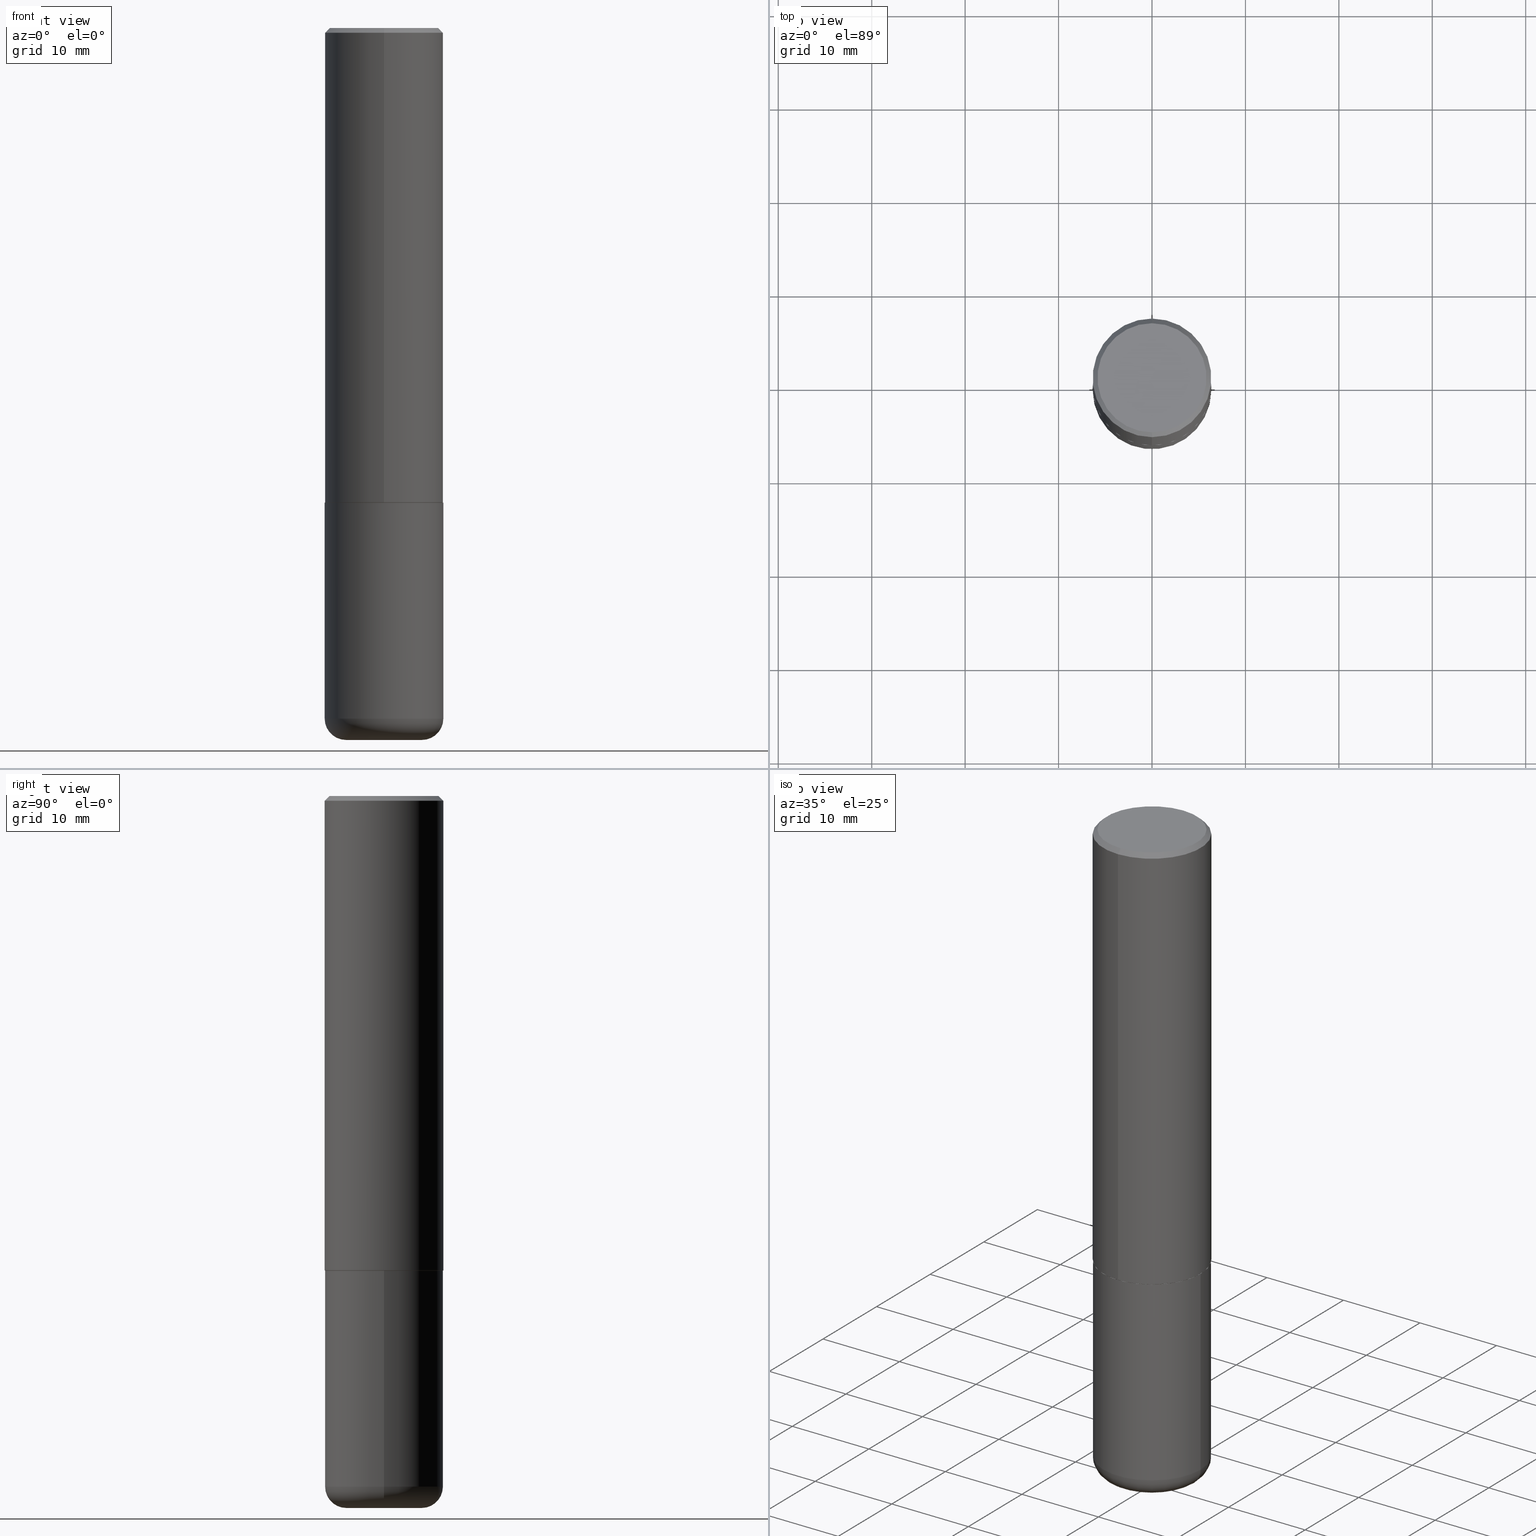
[diagram: canonical four-view strip — front | top / right | iso, engineering-drawing reading convention]
A machine part, canonical four-view strip (front | top / right | iso — engineering-drawing reading convention). The complete STEP part file that produces these views, byte-faithful:
ISO-10303-21;
HEADER;
FILE_DESCRIPTION (( 'STEP AP203' ),
    '1' );
FILE_NAME ('36812.STEP',
    '2024-03-01T17:56:15',
    ( '' ),
    ( '' ),
    'SwSTEP 2.0',
    'SolidWorks 2023',
    '' );
FILE_SCHEMA (( 'CONFIG_CONTROL_DESIGN' ));
ENDSEC;

DATA;
#1 = EDGE_CURVE ( 'NONE', #45, #97, #299, .T. ) ;
#2 = EDGE_LOOP ( 'NONE', ( #206, #264, #261, #297 ) ) ;
#3 = ORIENTED_EDGE ( 'NONE', *, *, #47, .F. ) ;
#4 = CARTESIAN_POINT ( 'NONE',  ( 4.890937612370273754E-29, -6.982962677686291954E-15, -2.000000000000000444 ) ) ;
#5 = APPROVAL ( #56, 'UNSPECIFIED' ) ;
#6 = AXIS2_PLACEMENT_3D ( 'NONE', #35, #95, #25 ) ;
#7 = ADVANCED_FACE ( 'NONE', ( #11 ), #367, .T. ) ;
#8 = ORIENTED_EDGE ( 'NONE', *, *, #282, .F. ) ;
#9 = ORIENTED_EDGE ( 'NONE', *, *, #362, .F. ) ;
#10 = ORIENTED_EDGE ( 'NONE', *, *, #202, .F. ) ;
#11 = FACE_OUTER_BOUND ( 'NONE', #133, .T. ) ;
#12 = APPROVAL_PERSON_ORGANIZATION ( #168, #415, #13 ) ;
#13 = APPROVAL_ROLE ( '' ) ;
#14 = CARTESIAN_POINT ( 'NONE',  ( -0.1600000000000000033, -9.023342318817394938E-15, -2.910000000000000586 ) ) ;
#15 = EDGE_CURVE ( 'NONE', #43, #235, #219, .T. ) ;
#16 = DIRECTION ( 'NONE',  ( 1.000000000000000000, -6.982962677686265133E-15, 4.883557194083112340E-29 ) ) ;
#17 = ADVANCED_FACE ( 'NONE', ( #241 ), #397, .F. ) ;
#18 =( NAMED_UNIT ( * ) PLANE_ANGLE_UNIT ( ) SI_UNIT ( $, .RADIAN. ) );
#19 = ORGANIZATION ( 'UNSPECIFIED', 'UNSPECIFIED', '' ) ;
#20 = FACE_OUTER_BOUND ( 'NONE', #413, .T. ) ;
#21 = CARTESIAN_POINT ( 'NONE',  ( 1.776356839400276103E-15, 0.2499999999999932276, -1.999000000000000998 ) ) ;
#22 = CARTESIAN_POINT ( 'NONE',  ( 7.116314225998749245E-29, -1.016021069603355467E-14, -2.910000000000000586 ) ) ;
#23 = COORDINATED_UNIVERSAL_TIME_OFFSET ( 5, 0, .BEHIND. ) ;
#24 = DIRECTION ( 'NONE',  ( -2.445468806185136597E-29, 3.491481338843145583E-15, 1.000000000000000000 ) ) ;
#25 = DIRECTION ( 'NONE',  ( -6.982962677686265922E-15, -1.000000000000000000, 3.490450240978375769E-15 ) ) ;
#26 = APPROVAL_DATE_TIME ( #346, #415 ) ;
#27 = CARTESIAN_POINT ( 'NONE',  ( 4.889931447133643413E-29, -6.977410031715773956E-15, -1.999000000000000110 ) ) ;
#28 = AXIS2_PLACEMENT_3D ( 'NONE', #142, #267, #361 ) ;
#29 = CIRCLE ( 'NONE', #416, 0.2500000000000000000 ) ;
#30 = CARTESIAN_POINT ( 'NONE',  ( 4.892377635951619858E-29, -6.980900481956752327E-15, -2.000000000000000444 ) ) ;
#31 = DIRECTION ( 'NONE',  ( -6.982962677686265133E-15, -1.000000000000000000, 3.278217592397113101E-15 ) ) ;
#32 = CARTESIAN_POINT ( 'NONE',  ( 7.116314225998749245E-29, -1.016021069603355467E-14, -2.910000000000000586 ) ) ;
#33 = EDGE_LOOP ( 'NONE', ( #418, #96, #255, #201 ) ) ;
#34 = ORIENTED_EDGE ( 'NONE', *, *, #362, .T. ) ;
#35 = CARTESIAN_POINT ( 'NONE',  ( 0.000000000000000000, 0.000000000000000000, 0.000000000000000000 ) ) ;
#36 = ADVANCED_FACE ( 'NONE', ( #210 ), #399, .T. ) ;
#37 = CONICAL_SURFACE ( 'NONE', #328, 0.2489999999999999991, 0.7853981633975165577 ) ;
#38 = CIRCLE ( 'NONE', #268, 0.1600000000000000033 ) ;
#39 = CARTESIAN_POINT ( 'NONE',  ( -0.2500000000000000000, -6.795229847459672846E-15, -2.000000000000000444 ) ) ;
#40 = ORIENTED_EDGE ( 'NONE', *, *, #15, .T. ) ;
#41 = DIRECTION ( 'NONE',  ( -2.445468806185136877E-29, 3.491481338843145188E-15, 1.000000000000000000 ) ) ;
#42 = AXIS2_PLACEMENT_3D ( 'NONE', #343, #24, #279 ) ;
#43 = VERTEX_POINT ( 'NONE', #296 ) ;
#44 = CARTESIAN_POINT ( 'NONE',  ( 4.892377635951642279E-31, -6.980900481956783980E-17, -0.02000000000000009409 ) ) ;
#45 = VERTEX_POINT ( 'NONE', #175 ) ;
#46 = DIRECTION ( 'NONE',  ( 2.438088387897960049E-29, -3.491481338843145188E-15, -1.000000000000000000 ) ) ;
#47 = EDGE_CURVE ( 'NONE', #72, #244, #54, .T. ) ;
#48 = CONICAL_SURFACE ( 'NONE', #280, 0.2489999999999999991, 0.7853981633975165577 ) ;
#49 = EDGE_LOOP ( 'NONE', ( #203, #258, #263, #237 ) ) ;
#50 = VECTOR ( 'NONE', #407, 39.37007874015748143 ) ;
#51 = ADVANCED_FACE ( 'NONE', ( #277 ), #37, .T. ) ;
#52 = CARTESIAN_POINT ( 'NONE',  ( -1.738757706743831162E-15, -0.2490000000000069658, -1.999999999999999334 ) ) ;
#53 = CONICAL_SURFACE ( 'NONE', #395, 0.2499999999999999722, 0.7853981633974460586 ) ;
#54 = LINE ( 'NONE', #83, #274 ) ;
#55 = LOCAL_TIME ( 12, 56, 15.00000000000000000, #120 ) ;
#56 = APPROVAL_STATUS ( 'not_yet_approved' ) ;
#57 = DIRECTION ( 'NONE',  ( -2.446188817975809368E-29, 3.490450240978375769E-15, 1.000000000000000000 ) ) ;
#58 = ADVANCED_BREP_SHAPE_REPRESENTATION ( '36812', ( #59, #335, #76 ), #283 ) ;
#59 = MANIFOLD_SOLID_BREP ( 'Body-Move/Copy2[1]', #171 ) ;
#60 = CARTESIAN_POINT ( 'NONE',  ( 4.892377635951642279E-31, -6.980900481956783980E-17, -0.02000000000000009409 ) ) ;
#61 = PLANE ( 'NONE',  #408 ) ;
#62 = DATE_AND_TIME ( #376, #137 ) ;
#63 = CARTESIAN_POINT ( 'NONE',  ( -1.745740669421566875E-15, -0.2500000000000000555, 8.726125602445941395E-16 ) ) ;
#64 = CIRCLE ( 'NONE', #82, 0.2489999999999999991 ) ;
#65 = DIRECTION ( 'NONE',  ( -2.445468806185136597E-29, 3.491481338843145583E-15, 1.000000000000000000 ) ) ;
#66 = DATE_AND_TIME ( #158, #71 ) ;
#67 = FACE_OUTER_BOUND ( 'NONE', #101, .T. ) ;
#68 = DIRECTION ( 'NONE',  ( 1.000000000000000000, -6.982962677686265133E-15, 4.883557194083112340E-29 ) ) ;
#69 = ADVANCED_FACE ( 'NONE', ( #251 ), #80, .T. ) ;
#70 = DIRECTION ( 'NONE',  ( -1.000000000000000000, 7.105427357601006592E-15, 0.000000000000000000 ) ) ;
#71 = LOCAL_TIME ( 12, 56, 15.00000000000000000, #228 ) ;
#72 = VERTEX_POINT ( 'NONE', #89 ) ;
#73 = LENGTH_MEASURE_WITH_UNIT ( LENGTH_MEASURE( 0.02539999999999999897 ), #213 );
#74 =( NAMED_UNIT ( * ) SI_UNIT ( $, .STERADIAN. ) SOLID_ANGLE_UNIT ( ) );
#75 = CIRCLE ( 'NONE', #312, 0.2299999999999997047 ) ;
#76 = AXIS2_PLACEMENT_3D ( 'NONE', #303, #338, #372 ) ;
#77 = CC_DESIGN_DATE_AND_TIME_ASSIGNMENT ( #62, #355, ( #111 ) ) ;
#78 = EDGE_CURVE ( 'NONE', #293, #295, #305, .T. ) ;
#79 = LINE ( 'NONE', #127, #50 ) ;
#80 = CYLINDRICAL_SURFACE ( 'NONE', #204, 0.2500000000000000000 ) ;
#81 = VECTOR ( 'NONE', #278, 39.37007874015748143 ) ;
#82 = AXIS2_PLACEMENT_3D ( 'NONE', #186, #308, #411 ) ;
#83 = CARTESIAN_POINT ( 'NONE',  ( 0.2500000000000000000, -1.745740669421566678E-15, 1.219044193948983948E-29 ) ) ;
#84 = DIRECTION ( 'NONE',  ( -2.445468806185136597E-29, 3.491481338843145583E-15, 1.000000000000000000 ) ) ;
#85 = EDGE_CURVE ( 'NONE', #270, #391, #75, .T. ) ;
#86 = CARTESIAN_POINT ( 'NONE',  ( 0.1600000000000000033, -1.127748472446335797E-14, -2.910000000000000586 ) ) ;
#87 = CARTESIAN_POINT ( 'NONE',  ( -1.745740669421518952E-15, -0.2500000000000071609, -1.998999999999999444 ) ) ;
#88 = CALENDAR_DATE ( 2024, 1, 3 ) ;
#89 = CARTESIAN_POINT ( 'NONE',  ( 0.2500000000000000000, -1.190595136545512292E-14, -2.910000000000000586 ) ) ;
#90 = DIRECTION ( 'NONE',  ( 1.000000000000000000, -6.982962677686269077E-15, 0.000000000000000000 ) ) ;
#91 = ORIENTED_EDGE ( 'NONE', *, *, #282, .T. ) ;
#92 = PERSON_AND_ORGANIZATION_ROLE ( 'design_supplier' ) ;
#93 = CIRCLE ( 'NONE', #172, 0.2500000000000002220 ) ;
#94 = DIRECTION ( 'NONE',  ( -2.446188817975809368E-29, 3.490450240978375769E-15, 1.000000000000000000 ) ) ;
#95 = DIRECTION ( 'NONE',  ( -2.446188817975809368E-29, 3.490450240978375769E-15, 1.000000000000000000 ) ) ;
#96 = ORIENTED_EDGE ( 'NONE', *, *, #187, .T. ) ;
#97 = VERTEX_POINT ( 'NONE', #21 ) ;
#98 = CARTESIAN_POINT ( 'NONE',  ( -6.363567190676771344E-45, 9.080130883992732273E-31, 2.601421093872280714E-16 ) ) ;
#99 = AXIS2_PLACEMENT_3D ( 'NONE', #151, #57, #248 ) ;
#100 = LOCAL_TIME ( 12, 56, 15.00000000000000000, #23 ) ;
#101 = EDGE_LOOP ( 'NONE', ( #169, #332 ) ) ;
#102 = DIRECTION ( 'NONE',  ( -2.445468806185136597E-29, 3.491481338843145583E-15, 1.000000000000000000 ) ) ;
#103 = EDGE_LOOP ( 'NONE', ( #200, #291 ) ) ;
#104 = EDGE_CURVE ( 'NONE', #234, #293, #218, .T. ) ;
#105 = CIRCLE ( 'NONE', #250, 0.2499999999999999722 ) ;
#106 = ORIENTED_EDGE ( 'NONE', *, *, #359, .T. ) ;
#107 = DIRECTION ( 'NONE',  ( -1.000000000000000000, 6.982962677686265922E-15, -4.876176775795935793E-29 ) ) ;
#108 = CARTESIAN_POINT ( 'NONE',  ( 0.2500000000000000000, -8.728703347107858632E-15, -2.000000000000000444 ) ) ;
#109 = ORIENTED_EDGE ( 'NONE', *, *, #78, .T. ) ;
#110 = ORIENTED_EDGE ( 'NONE', *, *, #390, .F. ) ;
#111 = PRODUCT_DEFINITION ( 'UNKNOWN', '', #162, #145 ) ;
#112 = ORIENTED_EDGE ( 'NONE', *, *, #113, .F. ) ;
#113 = EDGE_CURVE ( 'NONE', #97, #293, #136, .T. ) ;
#114 = AXIS2_PLACEMENT_3D ( 'NONE', #144, #243, #330 ) ;
#115 = CIRCLE ( 'NONE', #354, 0.1600000000000000033 ) ;
#116 = DIRECTION ( 'NONE',  ( 1.000000000000000000, -6.982962677686266711E-15, 4.876176775795935793E-29 ) ) ;
#117 = PERSON_AND_ORGANIZATION ( #301, #19 ) ;
#118 = CARTESIAN_POINT ( 'NONE',  ( 7.116314225998749245E-29, -1.016021069603355467E-14, -2.910000000000000586 ) ) ;
#119 = APPROVAL ( #379, 'UNSPECIFIED' ) ;
#120 = COORDINATED_UNIVERSAL_TIME_OFFSET ( 5, 0, .BEHIND. ) ;
#121 = CYLINDRICAL_SURFACE ( 'NONE', #148, 0.2500000000000000000 ) ;
#122 = DIRECTION ( 'NONE',  ( -6.982962677686265922E-15, -1.000000000000000000, 3.483106191921935949E-15 ) ) ;
#123 = ADVANCED_FACE ( 'NONE', ( #272 ), #121, .T. ) ;
#124 = AXIS2_PLACEMENT_3D ( 'NONE', #22, #65, #68 ) ;
#125 = FACE_OUTER_BOUND ( 'NONE', #398, .T. ) ;
#126 = PERSON_AND_ORGANIZATION ( #301, #19 ) ;
#127 = CARTESIAN_POINT ( 'NONE',  ( 1.776356839400250859E-15, 0.2500000000000000555, -8.726125602445941395E-16 ) ) ;
#128 = ORIENTED_EDGE ( 'NONE', *, *, #85, .T. ) ;
#129 = ADVANCED_FACE ( 'NONE', ( #20 ), #48, .T. ) ;
#130 = AXIS2_PLACEMENT_3D ( 'NONE', #14, #336, #70 ) ;
#131 = CC_DESIGN_APPROVAL ( #5, ( #162 ) ) ;
#132 = LINE ( 'NONE', #409, #81 ) ;
#133 = EDGE_LOOP ( 'NONE', ( #139, #174 ) ) ;
#134 = VERTEX_POINT ( 'NONE', #156 ) ;
#135 = DIRECTION ( 'NONE',  ( -6.982962677686265922E-15, -1.000000000000000000, 3.490450240978375769E-15 ) ) ;
#136 = CIRCLE ( 'NONE', #177, 0.2500000000000002220 ) ;
#137 = LOCAL_TIME ( 12, 56, 15.00000000000000000, #310 ) ;
#138 = PRODUCT_RELATED_PRODUCT_CATEGORY ( 'detail', '', ( #231 ) ) ;
#139 = ORIENTED_EDGE ( 'NONE', *, *, #341, .F. ) ;
#140 = EDGE_CURVE ( 'NONE', #72, #235, #143, .T. ) ;
#141 = UNCERTAINTY_MEASURE_WITH_UNIT (LENGTH_MEASURE( 1.000000000000000082E-05 ), #245, 'distance_accuracy_value', 'NONE');
#142 = CARTESIAN_POINT ( 'NONE',  ( 7.336406418555409790E-29, -1.047444401652943635E-14, -3.000000000000000444 ) ) ;
#143 = CIRCLE ( 'NONE', #238, 0.2500000000000000555 ) ;
#144 = CARTESIAN_POINT ( 'NONE',  ( 1.606081415867839095E-15, 0.2299999999999997047, -6.727325007314114504E-16 ) ) ;
#145 = DESIGN_CONTEXT ( 'detailed design', #325, 'design' ) ;
#146 = ORIENTED_EDGE ( 'NONE', *, *, #1, .T. ) ;
#147 = DIRECTION ( 'NONE',  ( 2.446188817975809368E-29, -3.490450240978375769E-15, -1.000000000000000000 ) ) ;
#148 = AXIS2_PLACEMENT_3D ( 'NONE', #226, #344, #222 ) ;
#149 = TOROIDAL_SURFACE ( 'NONE', #124, 0.1600000000000000033, 0.08999999999999994116 ) ;
#150 = CARTESIAN_POINT ( 'NONE',  ( -6.363567190676771344E-45, 9.080130883992732273E-31, 2.601421093872280714E-16 ) ) ;
#151 = CARTESIAN_POINT ( 'NONE',  ( 4.892377635951619858E-29, -6.980900481956752327E-15, -2.000000000000000444 ) ) ;
#152 = DIRECTION ( 'NONE',  ( -6.982962677686265922E-15, -1.000000000000000000, 3.490450240978375769E-15 ) ) ;
#153 = APPROVAL_DATE_TIME ( #185, #119 ) ;
#154 = DIRECTION ( 'NONE',  ( -2.445468806185136877E-29, 3.491481338843145188E-15, 1.000000000000000000 ) ) ;
#155 = PERSON_AND_ORGANIZATION_ROLE ( 'creator' ) ;
#156 = CARTESIAN_POINT ( 'NONE',  ( 1.745740669421566678E-15, 0.2499999999999998890, -0.02000000000000096492 ) ) ;
#157 = CARTESIAN_POINT ( 'NONE',  ( 7.116314225998749245E-29, -1.016021069603355467E-14, -2.910000000000000586 ) ) ;
#158 = CALENDAR_DATE ( 2024, 1, 3 ) ;
#159 = CARTESIAN_POINT ( 'NONE',  ( 4.892377635951642279E-31, -6.980900481956783980E-17, -0.02000000000000009409 ) ) ;
#160 = CARTESIAN_POINT ( 'NONE',  ( 1.745740669421566678E-15, 0.2499999999999998890, -0.02000000000000096492 ) ) ;
#161 = ADVANCED_FACE ( 'NONE', ( #377 ), #53, .T. ) ;
#162 = PRODUCT_DEFINITION_FORMATION_WITH_SPECIFIED_SOURCE ( 'ANY', '', #231, .NOT_KNOWN. ) ;
#163 = SECURITY_CLASSIFICATION ( '', '', #180 ) ;
#164 = EDGE_CURVE ( 'NONE', #360, #72, #221, .T. ) ;
#165 = EDGE_LOOP ( 'NONE', ( #128, #358 ) ) ;
#166 = DIRECTION ( 'NONE',  ( 6.982962677686265922E-15, 1.000000000000000000, -3.483106191921935949E-15 ) ) ;
#167 = EDGE_LOOP ( 'NONE', ( #9, #106, #369, #110 ) ) ;
#168 = PERSON_AND_ORGANIZATION ( #301, #19 ) ;
#169 = ORIENTED_EDGE ( 'NONE', *, *, #197, .F. ) ;
#170 = APPROVAL_STATUS ( 'not_yet_approved' ) ;
#171 = CLOSED_SHELL ( 'NONE', ( #123, #242, #403, #69, #289, #7 ) ) ;
#172 = AXIS2_PLACEMENT_3D ( 'NONE', #348, #281, #31 ) ;
#173 = CC_DESIGN_APPROVAL ( #119, ( #163 ) ) ;
#174 = ORIENTED_EDGE ( 'NONE', *, *, #187, .F. ) ;
#175 = CARTESIAN_POINT ( 'NONE',  ( 1.772804125721499462E-15, 0.2489999999999930325, -2.000000000000000888 ) ) ;
#176 = DIRECTION ( 'NONE',  ( -2.446188817975809368E-29, 3.490450240978375769E-15, 1.000000000000000000 ) ) ;
#177 = AXIS2_PLACEMENT_3D ( 'NONE', #27, #224, #191 ) ;
#178 = AXIS2_PLACEMENT_3D ( 'NONE', #290, #94, #152 ) ;
#179 = EDGE_CURVE ( 'NONE', #45, #234, #357, .T. ) ;
#180 = SECURITY_CLASSIFICATION_LEVEL ( 'unclassified' ) ;
#181 = CARTESIAN_POINT ( 'NONE',  ( 4.892377635951619858E-29, -6.980900481956752327E-15, -2.000000000000000444 ) ) ;
#182 = LINE ( 'NONE', #160, #329 ) ;
#183 = COORDINATED_UNIVERSAL_TIME_OFFSET ( 5, 0, .BEHIND. ) ;
#184 = DIRECTION ( 'NONE',  ( -2.445468806185136597E-29, 3.491481338843145583E-15, 1.000000000000000000 ) ) ;
#185 = DATE_AND_TIME ( #88, #100 ) ;
#186 = CARTESIAN_POINT ( 'NONE',  ( 4.892377635951619858E-29, -6.980900481956752327E-15, -2.000000000000000444 ) ) ;
#187 = EDGE_CURVE ( 'NONE', #43, #360, #38, .T. ) ;
#188 = DIRECTION ( 'NONE',  ( -2.446188817975809368E-29, 3.490450240978375769E-15, 1.000000000000000000 ) ) ;
#189 = CIRCLE ( 'NONE', #42, 0.2500000000000000000 ) ;
#190 = SHAPE_DEFINITION_REPRESENTATION ( #194, #58 ) ;
#191 = DIRECTION ( 'NONE',  ( -6.982962677686265133E-15, -1.000000000000000000, 3.278217592397113101E-15 ) ) ;
#192 = PERSON_AND_ORGANIZATION ( #301, #19 ) ;
#193 = DIRECTION ( 'NONE',  ( 4.937700262164536209E-15, 0.7071067811865434649, -0.7071067811865515695 ) ) ;
#194 = PRODUCT_DEFINITION_SHAPE ( 'NONE', 'NONE',  #111 ) ;
#195 = CARTESIAN_POINT ( 'NONE',  ( -1.715124499442881905E-15, -0.2500000000000000555, -0.01999999999999922326 ) ) ;
#196 = CC_DESIGN_PERSON_AND_ORGANIZATION_ASSIGNMENT ( #385, #155, ( #162 ) ) ;
#197 = EDGE_CURVE ( 'NONE', #234, #45, #64, .T. ) ;
#198 = AXIS2_PLACEMENT_3D ( 'NONE', #370, #46, #107 ) ;
#199 = CARTESIAN_POINT ( 'NONE',  ( -0.2500000000000000000, 1.776356839400250465E-15, -1.229733772563726445E-29 ) ) ;
#200 = ORIENTED_EDGE ( 'NONE', *, *, #232, .T. ) ;
#201 = ORIENTED_EDGE ( 'NONE', *, *, #359, .F. ) ;
#202 = EDGE_CURVE ( 'NONE', #97, #134, #79, .T. ) ;
#203 = ORIENTED_EDGE ( 'NONE', *, *, #393, .F. ) ;
#204 = AXIS2_PLACEMENT_3D ( 'NONE', #383, #352, #116 ) ;
#205 = LINE ( 'NONE', #199, #211 ) ;
#206 = ORIENTED_EDGE ( 'NONE', *, *, #309, .F. ) ;
#207 = PERSON_AND_ORGANIZATION_ROLE ( 'design_owner' ) ;
#208 = CARTESIAN_POINT ( 'NONE',  ( 1.769251412042698169E-15, 0.2489999999999930325, -2.000000000000000888 ) ) ;
#209 = ORIENTED_EDGE ( 'NONE', *, *, #232, .F. ) ;
#210 = FACE_OUTER_BOUND ( 'NONE', #49, .T. ) ;
#211 = VECTOR ( 'NONE', #41, 39.37007874015748143 ) ;
#212 = DIMENSIONAL_EXPONENTS ( 1.000000000000000000, 0.000000000000000000, 0.000000000000000000, 0.000000000000000000, 0.000000000000000000, 0.000000000000000000, 0.000000000000000000 ) ;
#213 =( LENGTH_UNIT ( ) NAMED_UNIT ( * ) SI_UNIT ( $, .METRE. ) );
#214 = ORIENTED_EDGE ( 'NONE', *, *, #1, .F. ) ;
#215 = APPLICATION_PROTOCOL_DEFINITION ( 'international standard', 'config_control_design', 1994, #287 ) ;
#216 = DIRECTION ( 'NONE',  ( -2.445468806185136597E-29, 3.491481338843145583E-15, 1.000000000000000000 ) ) ;
#217 = CALENDAR_DATE ( 2024, 1, 3 ) ;
#218 = LINE ( 'NONE', #314, #265 ) ;
#219 = CIRCLE ( 'NONE', #130, 0.08999999999999992728 ) ;
#220 = CLOSED_SHELL ( 'NONE', ( #51, #298, #36, #161, #269, #129, #345, #17 ) ) ;
#221 = CIRCLE ( 'NONE', #300, 0.08999999999999992728 ) ;
#222 = DIRECTION ( 'NONE',  ( 1.000000000000000000, -6.982962677686266711E-15, 4.876176775795935793E-29 ) ) ;
#223 = CYLINDRICAL_SURFACE ( 'NONE', #6, 0.2500000000000000555 ) ;
#224 = DIRECTION ( 'NONE',  ( -2.446188817975809368E-29, 3.490450240978375769E-15, 1.000000000000000000 ) ) ;
#225 = CYLINDRICAL_SURFACE ( 'NONE', #178, 0.2500000000000000555 ) ;
#226 = CARTESIAN_POINT ( 'NONE',  ( 0.000000000000000000, 0.000000000000000000, 0.000000000000000000 ) ) ;
#227 = ORIENTED_EDGE ( 'NONE', *, *, #78, .F. ) ;
#228 = COORDINATED_UNIVERSAL_TIME_OFFSET ( 5, 0, .BEHIND. ) ;
#229 = CARTESIAN_POINT ( 'NONE',  ( 7.336406418555409790E-29, -1.047444401652943635E-14, -3.000000000000000444 ) ) ;
#230 = FACE_OUTER_BOUND ( 'NONE', #103, .T. ) ;
#231 = PRODUCT ( '36812', '36812', '', ( #304 ) ) ;
#232 = EDGE_CURVE ( 'NONE', #244, #366, #189, .T. ) ;
#233 = EDGE_LOOP ( 'NONE', ( #91, #389, #392, #227 ) ) ;
#234 = VERTEX_POINT ( 'NONE', #52 ) ;
#235 = VERTEX_POINT ( 'NONE', #375 ) ;
#236 = DIRECTION ( 'NONE',  ( 1.000000000000000000, -6.982962677686266711E-15, 0.000000000000000000 ) ) ;
#237 = ORIENTED_EDGE ( 'NONE', *, *, #260, .F. ) ;
#238 = AXIS2_PLACEMENT_3D ( 'NONE', #118, #216, #249 ) ;
#239 = CC_DESIGN_SECURITY_CLASSIFICATION ( #163, ( #162 ) ) ;
#240 = ORIENTED_EDGE ( 'NONE', *, *, #113, .T. ) ;
#241 = FACE_OUTER_BOUND ( 'NONE', #165, .T. ) ;
#242 = ADVANCED_FACE ( 'NONE', ( #125 ), #266, .T. ) ;
#243 = DIRECTION ( 'NONE',  ( 2.446188817975809368E-29, -3.490450240978375769E-15, -1.000000000000000000 ) ) ;
#244 = VERTEX_POINT ( 'NONE', #108 ) ;
#245 =( CONVERSION_BASED_UNIT ( 'INCH', #73 ) LENGTH_UNIT ( ) NAMED_UNIT ( #212 ) );
#246 = CARTESIAN_POINT ( 'NONE',  ( 7.336406418555409790E-29, -1.047444401652943635E-14, -3.000000000000000444 ) ) ;
#247 = APPROVAL_DATE_TIME ( #66, #5 ) ;
#248 = DIRECTION ( 'NONE',  ( -6.982962677686265133E-15, -1.000000000000000000, 3.291383124896702687E-15 ) ) ;
#249 = DIRECTION ( 'NONE',  ( 1.000000000000000000, -6.982962677686269077E-15, 0.000000000000000000 ) ) ;
#250 = AXIS2_PLACEMENT_3D ( 'NONE', #350, #256, #387 ) ;
#251 = FACE_OUTER_BOUND ( 'NONE', #167, .T. ) ;
#252 = DATE_AND_TIME ( #217, #55 ) ;
#253 = DIRECTION ( 'NONE',  ( -6.982962677686265922E-15, -1.000000000000000000, 3.490450240978375769E-15 ) ) ;
#254 = CARTESIAN_POINT ( 'NONE',  ( 1.675911042644702985E-15, 0.2299999999999997047, -5.426614460377973654E-16 ) ) ;
#255 = ORIENTED_EDGE ( 'NONE', *, *, #164, .T. ) ;
#256 = DIRECTION ( 'NONE',  ( -2.446188817975809368E-29, 3.490450240978375769E-15, 1.000000000000000000 ) ) ;
#257 = CC_DESIGN_APPROVAL ( #415, ( #111 ) ) ;
#258 = ORIENTED_EDGE ( 'NONE', *, *, #309, .T. ) ;
#259 = PLANE ( 'NONE',  #198 ) ;
#260 = EDGE_CURVE ( 'NONE', #270, #134, #182, .T. ) ;
#261 = ORIENTED_EDGE ( 'NONE', *, *, #260, .T. ) ;
#262 = VECTOR ( 'NONE', #402, 39.37007874015748143 ) ;
#263 = ORIENTED_EDGE ( 'NONE', *, *, #331, .T. ) ;
#264 = ORIENTED_EDGE ( 'NONE', *, *, #85, .F. ) ;
#265 = VECTOR ( 'NONE', #306, 39.37007874015748143 ) ;
#266 = TOROIDAL_SURFACE ( 'NONE', #275, 0.1600000000000000033, 0.08999999999999994116 ) ;
#267 = DIRECTION ( 'NONE',  ( 2.438088387897960049E-29, -3.491481338843145188E-15, -1.000000000000000000 ) ) ;
#268 = AXIS2_PLACEMENT_3D ( 'NONE', #246, #184, #373 ) ;
#269 = ADVANCED_FACE ( 'NONE', ( #414 ), #223, .T. ) ;
#270 = VERTEX_POINT ( 'NONE', #254 ) ;
#271 = EDGE_LOOP ( 'NONE', ( #394, #146, #8, #317 ) ) ;
#272 = FACE_OUTER_BOUND ( 'NONE', #327, .T. ) ;
#273 = CARTESIAN_POINT ( 'NONE',  ( -1.646519519465165981E-15, -0.2299999999999997047, 1.062945664812253508E-15 ) ) ;
#274 = VECTOR ( 'NONE', #154, 39.37007874015748143 ) ;
#275 = AXIS2_PLACEMENT_3D ( 'NONE', #32, #292, #16 ) ;
#276 = DIRECTION ( 'NONE',  ( 6.982962677686265922E-15, 1.000000000000000000, -3.483106191921935949E-15 ) ) ;
#277 = FACE_OUTER_BOUND ( 'NONE', #271, .T. ) ;
#278 = DIRECTION ( 'NONE',  ( -4.851104656540952442E-15, -0.7071067811865483499, -0.7071067811865466846 ) ) ;
#279 = DIRECTION ( 'NONE',  ( 1.000000000000000000, -6.982962677686266711E-15, 0.000000000000000000 ) ) ;
#280 = AXIS2_PLACEMENT_3D ( 'NONE', #401, #380, #311 ) ;
#281 = DIRECTION ( 'NONE',  ( -2.446188817975809368E-29, 3.490450240978375769E-15, 1.000000000000000000 ) ) ;
#282 = EDGE_CURVE ( 'NONE', #293, #97, #93, .T. ) ;
#283 =( GEOMETRIC_REPRESENTATION_CONTEXT ( 3 ) GLOBAL_UNCERTAINTY_ASSIGNED_CONTEXT ( ( #141 ) ) GLOBAL_UNIT_ASSIGNED_CONTEXT ( ( #245, #18, #74 ) ) REPRESENTATION_CONTEXT ( 'NONE', 'WORKASPACE' ) );
#284 = PERSON_AND_ORGANIZATION_ROLE ( 'classification_officer' ) ;
#285 = DIRECTION ( 'NONE',  ( 1.000000000000000000, -6.982962677686273810E-15, 0.000000000000000000 ) ) ;
#286 = CC_DESIGN_PERSON_AND_ORGANIZATION_ASSIGNMENT ( #307, #92, ( #162 ) ) ;
#287 = APPLICATION_CONTEXT ( 'configuration controlled 3d designs of mechanical parts and assemblies' ) ;
#288 = ORIENTED_EDGE ( 'NONE', *, *, #140, .T. ) ;
#289 = ADVANCED_FACE ( 'NONE', ( #381 ), #149, .T. ) ;
#290 = CARTESIAN_POINT ( 'NONE',  ( 0.000000000000000000, 0.000000000000000000, 0.000000000000000000 ) ) ;
#291 = ORIENTED_EDGE ( 'NONE', *, *, #390, .T. ) ;
#292 = DIRECTION ( 'NONE',  ( -2.445468806185136597E-29, 3.491481338843145583E-15, 1.000000000000000000 ) ) ;
#293 = VERTEX_POINT ( 'NONE', #87 ) ;
#294 = AXIS2_PLACEMENT_3D ( 'NONE', #159, #384, #122 ) ;
#295 = VERTEX_POINT ( 'NONE', #195 ) ;
#296 = CARTESIAN_POINT ( 'NONE',  ( -0.1600000000000000033, -8.860714747973290413E-15, -3.000000000000000444 ) ) ;
#297 = ORIENTED_EDGE ( 'NONE', *, *, #316, .T. ) ;
#298 = ADVANCED_FACE ( 'NONE', ( #405 ), #225, .T. ) ;
#299 = LINE ( 'NONE', #208, #353 ) ;
#300 = AXIS2_PLACEMENT_3D ( 'NONE', #86, #347, #285 ) ;
#301 = PERSON ( 'UNSPECIFIED', 'UNSPECIFIED', 'UNSPECIFIED', ('UNSPECIFIED'), ('UNSPECIFIED'), ('UNSPECIFIED') ) ;
#302 = CC_DESIGN_PERSON_AND_ORGANIZATION_ASSIGNMENT ( #382, #351, ( #111 ) ) ;
#303 = CARTESIAN_POINT ( 'NONE',  ( 0.000000000000000000, 0.000000000000000000, 0.000000000000000000 ) ) ;
#304 = MECHANICAL_CONTEXT ( 'NONE', #287, 'mechanical' ) ;
#305 = LINE ( 'NONE', #63, #262 ) ;
#306 = DIRECTION ( 'NONE',  ( -4.937700262164884886E-15, -0.7071067811865933139, 0.7071067811865017205 ) ) ;
#307 = PERSON_AND_ORGANIZATION ( #301, #19 ) ;
#308 = DIRECTION ( 'NONE',  ( -2.446188817975809368E-29, 3.490450240978375769E-15, 1.000000000000000000 ) ) ;
#309 = EDGE_CURVE ( 'NONE', #391, #295, #132, .T. ) ;
#310 = COORDINATED_UNIVERSAL_TIME_OFFSET ( 5, 0, .BEHIND. ) ;
#311 = DIRECTION ( 'NONE',  ( -6.982962677686265133E-15, -1.000000000000000000, 3.291383124896702687E-15 ) ) ;
#312 = AXIS2_PLACEMENT_3D ( 'NONE', #150, #349, #253 ) ;
#313 = DIRECTION ( 'NONE',  ( -6.982962677686265922E-15, -1.000000000000000000, 3.490450240978375769E-15 ) ) ;
#314 = CARTESIAN_POINT ( 'NONE',  ( -1.738757706743831162E-15, -0.2490000000000069658, -1.999999999999999334 ) ) ;
#315 = ORIENTED_EDGE ( 'NONE', *, *, #341, .T. ) ;
#316 = EDGE_CURVE ( 'NONE', #134, #295, #388, .T. ) ;
#317 = ORIENTED_EDGE ( 'NONE', *, *, #104, .F. ) ;
#318 = APPROVAL_ROLE ( '' ) ;
#319 = AXIS2_PLACEMENT_3D ( 'NONE', #157, #412, #90 ) ;
#320 = CC_DESIGN_PERSON_AND_ORGANIZATION_ASSIGNMENT ( #126, #284, ( #163 ) ) ;
#321 = CC_DESIGN_PERSON_AND_ORGANIZATION_ASSIGNMENT ( #365, #207, ( #231 ) ) ;
#322 = ORIENTED_EDGE ( 'NONE', *, *, #104, .T. ) ;
#323 = CARTESIAN_POINT ( 'NONE',  ( 0.1600000000000000033, -1.159171804495923808E-14, -3.000000000000000444 ) ) ;
#324 = ORIENTED_EDGE ( 'NONE', *, *, #316, .F. ) ;
#325 = APPLICATION_CONTEXT ( 'configuration controlled 3d designs of mechanical parts and assemblies' ) ;
#326 = DIRECTION ( 'NONE',  ( -2.446188817975809368E-29, 3.490450240978375769E-15, 1.000000000000000000 ) ) ;
#327 = EDGE_LOOP ( 'NONE', ( #288, #34, #209, #3 ) ) ;
#328 = AXIS2_PLACEMENT_3D ( 'NONE', #181, #176, #404 ) ;
#329 = VECTOR ( 'NONE', #193, 39.37007874015748143 ) ;
#330 = DIRECTION ( 'NONE',  ( 6.982962677686265922E-15, 1.000000000000000000, -3.490450240978375769E-15 ) ) ;
#331 = EDGE_CURVE ( 'NONE', #295, #134, #105, .T. ) ;
#332 = ORIENTED_EDGE ( 'NONE', *, *, #179, .F. ) ;
#333 = APPLICATION_PROTOCOL_DEFINITION ( 'international standard', 'config_control_design', 1994, #325 ) ;
#334 = DIRECTION ( 'NONE',  ( 5.024295867788404755E-15, 0.7071067811865981989, 0.7071067811864968355 ) ) ;
#335 = MANIFOLD_SOLID_BREP ( 'Body-Move/Copy2[2]', #220 ) ;
#336 = DIRECTION ( 'NONE',  ( 7.105427357601001859E-15, 1.000000000000000000, -3.491481338843145583E-15 ) ) ;
#337 = ORIENTED_EDGE ( 'NONE', *, *, #164, .F. ) ;
#338 = DIRECTION ( 'NONE',  ( 0.000000000000000000, 0.000000000000000000, 1.000000000000000000 ) ) ;
#339 = LOCAL_TIME ( 12, 56, 15.00000000000000000, #183 ) ;
#340 = DIRECTION ( 'NONE',  ( 2.446188817975809368E-29, -3.490450240978375769E-15, -1.000000000000000000 ) ) ;
#341 = EDGE_CURVE ( 'NONE', #360, #43, #115, .T. ) ;
#342 = ORIENTED_EDGE ( 'NONE', *, *, #179, .T. ) ;
#343 = CARTESIAN_POINT ( 'NONE',  ( 4.890937612370273754E-29, -6.982962677686291954E-15, -2.000000000000000444 ) ) ;
#344 = DIRECTION ( 'NONE',  ( -2.445468806185136597E-29, 3.491481338843145583E-15, 1.000000000000000000 ) ) ;
#345 = ADVANCED_FACE ( 'NONE', ( #67 ), #61, .F. ) ;
#346 = DATE_AND_TIME ( #410, #339 ) ;
#347 = DIRECTION ( 'NONE',  ( -6.982962677686266711E-15, -1.000000000000000000, 3.491481338843145583E-15 ) ) ;
#348 = CARTESIAN_POINT ( 'NONE',  ( 4.889931447133643413E-29, -6.977410031715773956E-15, -1.999000000000000110 ) ) ;
#349 = DIRECTION ( 'NONE',  ( -2.446188817975809368E-29, 3.490450240978375769E-15, 1.000000000000000000 ) ) ;
#350 = CARTESIAN_POINT ( 'NONE',  ( 4.892377635951642279E-31, -6.980900481956783980E-17, -0.02000000000000009409 ) ) ;
#351 = PERSON_AND_ORGANIZATION_ROLE ( 'creator' ) ;
#352 = DIRECTION ( 'NONE',  ( -2.445468806185136597E-29, 3.491481338843145583E-15, 1.000000000000000000 ) ) ;
#353 = VECTOR ( 'NONE', #334, 39.37007874015748143 ) ;
#354 = AXIS2_PLACEMENT_3D ( 'NONE', #229, #84, #356 ) ;
#355 = DATE_TIME_ROLE ( 'creation_date' ) ;
#356 = DIRECTION ( 'NONE',  ( 1.000000000000000000, -6.982962677686259611E-15, 0.000000000000000000 ) ) ;
#357 = CIRCLE ( 'NONE', #99, 0.2489999999999999991 ) ;
#358 = ORIENTED_EDGE ( 'NONE', *, *, #393, .T. ) ;
#359 = EDGE_CURVE ( 'NONE', #235, #72, #371, .T. ) ;
#360 = VERTEX_POINT ( 'NONE', #323 ) ;
#361 = DIRECTION ( 'NONE',  ( -1.000000000000000000, 6.982962677686265922E-15, -4.876176775795935793E-29 ) ) ;
#362 = EDGE_CURVE ( 'NONE', #235, #366, #205, .T. ) ;
#363 = EDGE_LOOP ( 'NONE', ( #10, #240, #109, #324 ) ) ;
#364 = AXIS2_PLACEMENT_3D ( 'NONE', #98, #326, #135 ) ;
#365 = PERSON_AND_ORGANIZATION ( #301, #19 ) ;
#366 = VERTEX_POINT ( 'NONE', #39 ) ;
#367 = PLANE ( 'NONE',  #28 ) ;
#368 = CC_DESIGN_DATE_AND_TIME_ASSIGNMENT ( #252, #406, ( #163 ) ) ;
#369 = ORIENTED_EDGE ( 'NONE', *, *, #47, .T. ) ;
#370 = CARTESIAN_POINT ( 'NONE',  ( 4.890937612370273754E-29, -6.982962677686291954E-15, -2.000000000000000444 ) ) ;
#371 = CIRCLE ( 'NONE', #319, 0.2500000000000000555 ) ;
#372 = DIRECTION ( 'NONE',  ( 1.000000000000000000, 0.000000000000000000, 0.000000000000000000 ) ) ;
#373 = DIRECTION ( 'NONE',  ( 1.000000000000000000, -6.982962677686259611E-15, 0.000000000000000000 ) ) ;
#374 = APPROVAL_ROLE ( '' ) ;
#375 = CARTESIAN_POINT ( 'NONE',  ( -0.2500000000000000000, -8.383853856633304202E-15, -2.910000000000000586 ) ) ;
#376 = CALENDAR_DATE ( 2024, 1, 3 ) ;
#377 = FACE_OUTER_BOUND ( 'NONE', #2, .T. ) ;
#378 = CIRCLE ( 'NONE', #364, 0.2299999999999997047 ) ;
#379 = APPROVAL_STATUS ( 'not_yet_approved' ) ;
#380 = DIRECTION ( 'NONE',  ( -2.446188817975809368E-29, 3.490450240978375769E-15, 1.000000000000000000 ) ) ;
#381 = FACE_OUTER_BOUND ( 'NONE', #33, .T. ) ;
#382 = PERSON_AND_ORGANIZATION ( #301, #19 ) ;
#383 = CARTESIAN_POINT ( 'NONE',  ( 0.000000000000000000, 0.000000000000000000, 0.000000000000000000 ) ) ;
#384 = DIRECTION ( 'NONE',  ( -2.446188817975809368E-29, 3.490450240978375769E-15, 1.000000000000000000 ) ) ;
#385 = PERSON_AND_ORGANIZATION ( #301, #19 ) ;
#386 = AXIS2_PLACEMENT_3D ( 'NONE', #44, #340, #166 ) ;
#387 = DIRECTION ( 'NONE',  ( -6.982962677686265922E-15, -1.000000000000000000, 3.483106191921935949E-15 ) ) ;
#388 = CIRCLE ( 'NONE', #294, 0.2499999999999999722 ) ;
#389 = ORIENTED_EDGE ( 'NONE', *, *, #202, .T. ) ;
#390 = EDGE_CURVE ( 'NONE', #366, #244, #29, .T. ) ;
#391 = VERTEX_POINT ( 'NONE', #273 ) ;
#392 = ORIENTED_EDGE ( 'NONE', *, *, #331, .F. ) ;
#393 = EDGE_CURVE ( 'NONE', #391, #270, #378, .T. ) ;
#394 = ORIENTED_EDGE ( 'NONE', *, *, #197, .T. ) ;
#395 = AXIS2_PLACEMENT_3D ( 'NONE', #60, #147, #276 ) ;
#396 = ORIENTED_EDGE ( 'NONE', *, *, #140, .F. ) ;
#397 = PLANE ( 'NONE',  #114 ) ;
#398 = EDGE_LOOP ( 'NONE', ( #315, #40, #396, #337 ) ) ;
#399 = CONICAL_SURFACE ( 'NONE', #386, 0.2499999999999999722, 0.7853981633974460586 ) ;
#400 = APPROVAL_PERSON_ORGANIZATION ( #117, #5, #374 ) ;
#401 = CARTESIAN_POINT ( 'NONE',  ( 4.892377635951619858E-29, -6.980900481956752327E-15, -2.000000000000000444 ) ) ;
#402 = DIRECTION ( 'NONE',  ( -2.446188817975809368E-29, 3.490450240978375769E-15, 1.000000000000000000 ) ) ;
#403 = ADVANCED_FACE ( 'NONE', ( #230 ), #259, .F. ) ;
#404 = DIRECTION ( 'NONE',  ( -6.982962677686265133E-15, -1.000000000000000000, 3.291383124896702687E-15 ) ) ;
#405 = FACE_OUTER_BOUND ( 'NONE', #233, .T. ) ;
#406 = DATE_TIME_ROLE ( 'classification_date' ) ;
#407 = DIRECTION ( 'NONE',  ( -2.446188817975809368E-29, 3.490450240978375769E-15, 1.000000000000000000 ) ) ;
#408 = AXIS2_PLACEMENT_3D ( 'NONE', #30, #188, #313 ) ;
#409 = CARTESIAN_POINT ( 'NONE',  ( -1.715124499442881905E-15, -0.2500000000000000555, -0.01999999999999922326 ) ) ;
#410 = CALENDAR_DATE ( 2024, 1, 3 ) ;
#411 = DIRECTION ( 'NONE',  ( -6.982962677686265133E-15, -1.000000000000000000, 3.291383124896702687E-15 ) ) ;
#412 = DIRECTION ( 'NONE',  ( -2.445468806185136597E-29, 3.491481338843145583E-15, 1.000000000000000000 ) ) ;
#413 = EDGE_LOOP ( 'NONE', ( #214, #342, #322, #112 ) ) ;
#414 = FACE_OUTER_BOUND ( 'NONE', #363, .T. ) ;
#415 = APPROVAL ( #170, 'UNSPECIFIED' ) ;
#416 = AXIS2_PLACEMENT_3D ( 'NONE', #4, #102, #236 ) ;
#417 = APPROVAL_PERSON_ORGANIZATION ( #192, #119, #318 ) ;
#418 = ORIENTED_EDGE ( 'NONE', *, *, #15, .F. ) ;
ENDSEC;
END-ISO-10303-21;
